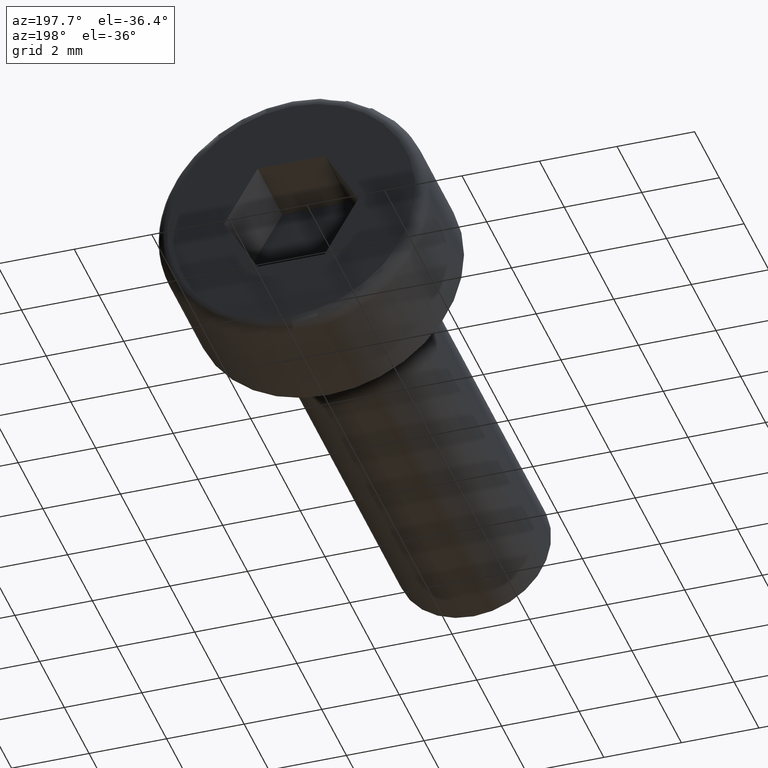
[diagram: clean part render]
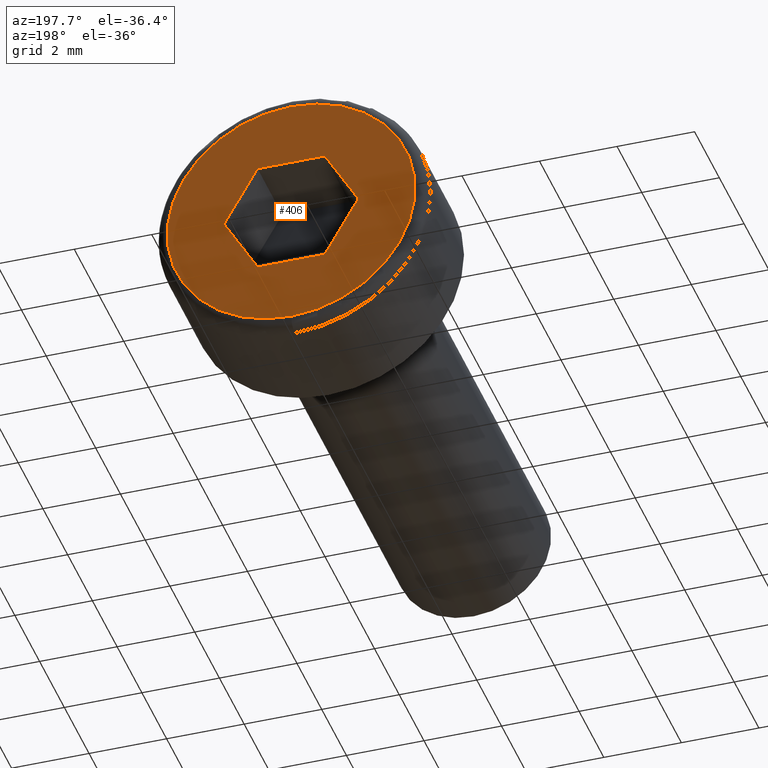
[diagram: same view with one face highlighted and labeled with its STEP entity id]
A machine part, auxiliary view. The second image highlights one B-rep face of the part: STEP entity #406.
In plain terms, the highlighted planar face has unit normal (0, 1, 0).
Its self-contained STEP definition (entity closure, byte-faithful):
#16 = CARTESIAN_POINT ( 'NONE',  ( -1.732050807568877900, 3.000000000000000000, -1.397130228418429200E-015 ) ) ;
#19 = DIRECTION ( 'NONE',  ( -0.5000000000000001100, 0.0000000000000000000, -0.8660254037844386000 ) ) ;
#21 = DIRECTION ( 'NONE',  ( 0.0000000000000000000, 0.0000000000000000000, 1.000000000000000000 ) ) ;
#24 = DIRECTION ( 'NONE',  ( 0.0000000000000000000, 1.000000000000000000, 0.0000000000000000000 ) ) ;
#33 = CARTESIAN_POINT ( 'NONE',  ( 0.8660254037844383700, 3.000000000000000000, -1.499999999999999100 ) ) ;
#52 = CARTESIAN_POINT ( 'NONE',  ( 4.102566777143633300E-016, 3.000000000000000000, -3.200000000000000200 ) ) ;
#68 = CARTESIAN_POINT ( 'NONE',  ( 0.0000000000000000000, 3.000000000000000000, 3.200000000000000200 ) ) ;
#69 = CARTESIAN_POINT ( 'NONE',  ( 1.732050807568877200, 3.000000000000000000, 6.989779385099198900E-016 ) ) ;
#75 = CARTESIAN_POINT ( 'NONE',  ( -0.8660254037844404800, 3.000000000000000000, -1.499999999999998700 ) ) ;
#82 = PLANE ( 'NONE',  #462 ) ;
#118 = DIRECTION ( 'NONE',  ( 1.000000000000000000, 0.0000000000000000000, 0.0000000000000000000 ) ) ;
#129 = DIRECTION ( 'NONE',  ( 0.5000000000000001100, 0.0000000000000000000, -0.8660254037844386000 ) ) ;
#130 = CARTESIAN_POINT ( 'NONE',  ( 0.8660254037844382600, 3.000000000000000000, 1.500000000000000700 ) ) ;
#144 = CARTESIAN_POINT ( 'NONE',  ( 0.8660254037844382600, 3.000000000000000000, 1.500000000000000700 ) ) ;
#146 = CARTESIAN_POINT ( 'NONE',  ( -0.8660254037844377100, 3.000000000000000000, 1.500000000000000700 ) ) ;
#149 = CARTESIAN_POINT ( 'NONE',  ( 0.8660254037844383700, 3.000000000000000000, -1.499999999999999100 ) ) ;
#150 = DIRECTION ( 'NONE',  ( 0.0000000000000000000, -0.0000000000000000000, 1.000000000000000000 ) ) ;
#154 = DIRECTION ( 'NONE',  ( -0.5000000000000001100, 0.0000000000000000000, 0.8660254037844386000 ) ) ;
#160 = DIRECTION ( 'NONE',  ( -1.000000000000000000, 0.0000000000000000000, 2.503857664561930400E-016 ) ) ;
#162 = DIRECTION ( 'NONE',  ( 0.5000000000000001100, 0.0000000000000000000, 0.8660254037844384900 ) ) ;
#163 = CARTESIAN_POINT ( 'NONE',  ( -1.732050807568877900, 3.000000000000000000, -1.517883041479706200E-015 ) ) ;
#167 = CARTESIAN_POINT ( 'NONE',  ( -0.8660254037844404800, 3.000000000000000000, -1.499999999999998700 ) ) ;
#174 = CARTESIAN_POINT ( 'NONE',  ( -0.8660254037844377100, 3.000000000000000000, 1.500000000000000700 ) ) ;
#175 = CARTESIAN_POINT ( 'NONE',  ( 0.0000000000000000000, 3.000000000000000000, 0.0000000000000000000 ) ) ;
#178 = DIRECTION ( 'NONE',  ( 0.0000000000000000000, 0.0000000000000000000, 1.000000000000000000 ) ) ;
#182 = DIRECTION ( 'NONE',  ( 0.0000000000000000000, 1.000000000000000000, 0.0000000000000000000 ) ) ;
#186 = CARTESIAN_POINT ( 'NONE',  ( 0.0000000000000000000, 3.000000000000000000, 0.0000000000000000000 ) ) ;
#189 = CARTESIAN_POINT ( 'NONE',  ( 0.0000000000000000000, 3.000000000000000000, 0.0000000000000000000 ) ) ;
#200 = CARTESIAN_POINT ( 'NONE',  ( 1.732050807568877200, 3.000000000000000000, 6.989779385099198900E-016 ) ) ;
#201 = DIRECTION ( 'NONE',  ( 0.0000000000000000000, 1.000000000000000000, 0.0000000000000000000 ) ) ;
#217 = VERTEX_POINT ( 'NONE', #33 ) ;
#237 = VERTEX_POINT ( 'NONE', #69 ) ;
#248 = FACE_OUTER_BOUND ( 'NONE', #530, .T. ) ;
#251 = FACE_BOUND ( 'NONE', #539, .T. ) ;
#276 = LINE ( 'NONE', #16, #277 ) ;
#277 = VECTOR ( 'NONE', #162, 1000.000000000000200 ) ;
#278 = LINE ( 'NONE', #174, #280 ) ;
#280 = VECTOR ( 'NONE', #118, 1000.000000000000000 ) ;
#283 = CIRCLE ( 'NONE', #472, 3.200000000000000200 ) ;
#284 = LINE ( 'NONE', #200, #299 ) ;
#292 = VECTOR ( 'NONE', #160, 1000.000000000000000 ) ;
#299 = VECTOR ( 'NONE', #19, 1000.000000000000100 ) ;
#300 = LINE ( 'NONE', #149, #292 ) ;
#306 = CIRCLE ( 'NONE', #474, 3.200000000000000200 ) ;
#327 = ORIENTED_EDGE ( 'NONE', *, *, #439, .F. ) ;
#328 = ORIENTED_EDGE ( 'NONE', *, *, #431, .T. ) ;
#336 = VERTEX_POINT ( 'NONE', #146 ) ;
#347 = ORIENTED_EDGE ( 'NONE', *, *, #417, .F. ) ;
#349 = ORIENTED_EDGE ( 'NONE', *, *, #430, .F. ) ;
#356 = VERTEX_POINT ( 'NONE', #163 ) ;
#365 = ORIENTED_EDGE ( 'NONE', *, *, #436, .F. ) ;
#367 = ORIENTED_EDGE ( 'NONE', *, *, #426, .T. ) ;
#374 = VERTEX_POINT ( 'NONE', #52 ) ;
#375 = VERTEX_POINT ( 'NONE', #144 ) ;
#376 = VERTEX_POINT ( 'NONE', #68 ) ;
#378 = VERTEX_POINT ( 'NONE', #75 ) ;
#384 = ORIENTED_EDGE ( 'NONE', *, *, #438, .F. ) ;
#387 = ORIENTED_EDGE ( 'NONE', *, *, #421, .F. ) ;
#406 = ADVANCED_FACE ( 'NONE', ( #251, #248 ), #82, .T. ) ;
#417 = EDGE_CURVE ( 'NONE', #356, #336, #276, .T. ) ;
#421 = EDGE_CURVE ( 'NONE', #336, #375, #278, .T. ) ;
#426 = EDGE_CURVE ( 'NONE', #376, #374, #283, .T. ) ;
#430 = EDGE_CURVE ( 'NONE', #237, #217, #284, .T. ) ;
#431 = EDGE_CURVE ( 'NONE', #374, #376, #306, .T. ) ;
#436 = EDGE_CURVE ( 'NONE', #217, #378, #300, .T. ) ;
#438 = EDGE_CURVE ( 'NONE', #378, #356, #520, .T. ) ;
#439 = EDGE_CURVE ( 'NONE', #375, #237, #514, .T. ) ;
#462 = AXIS2_PLACEMENT_3D ( 'NONE', #189, #201, #150 ) ;
#472 = AXIS2_PLACEMENT_3D ( 'NONE', #175, #24, #21 ) ;
#474 = AXIS2_PLACEMENT_3D ( 'NONE', #186, #182, #178 ) ;
#503 = VECTOR ( 'NONE', #129, 1000.000000000000000 ) ;
#505 = VECTOR ( 'NONE', #154, 1000.000000000000000 ) ;
#514 = LINE ( 'NONE', #130, #503 ) ;
#520 = LINE ( 'NONE', #167, #505 ) ;
#530 = EDGE_LOOP ( 'NONE', ( #367, #328 ) ) ;
#539 = EDGE_LOOP ( 'NONE', ( #384, #365, #349, #327, #387, #347 ) ) ;